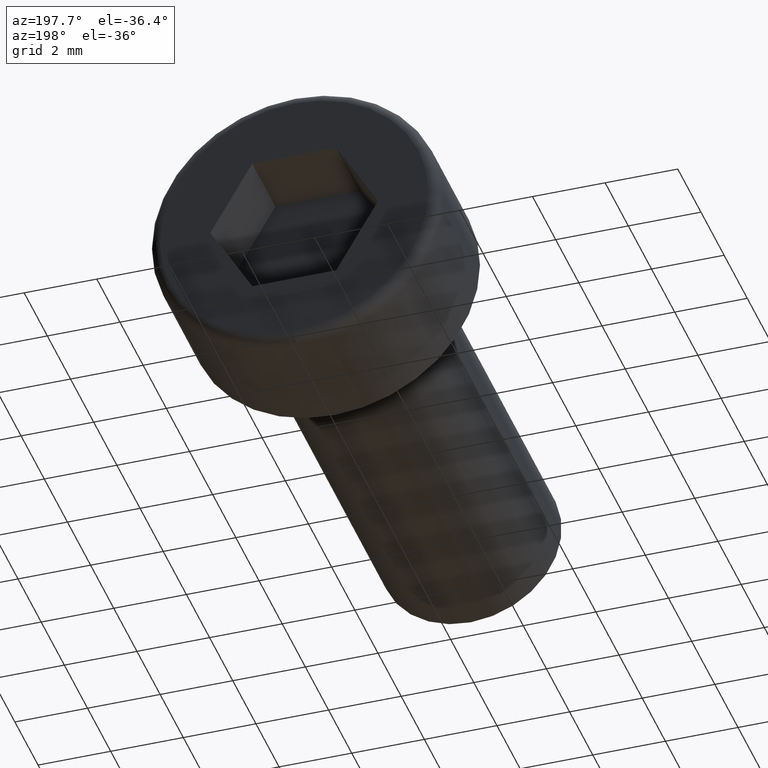
[diagram: clean part render]
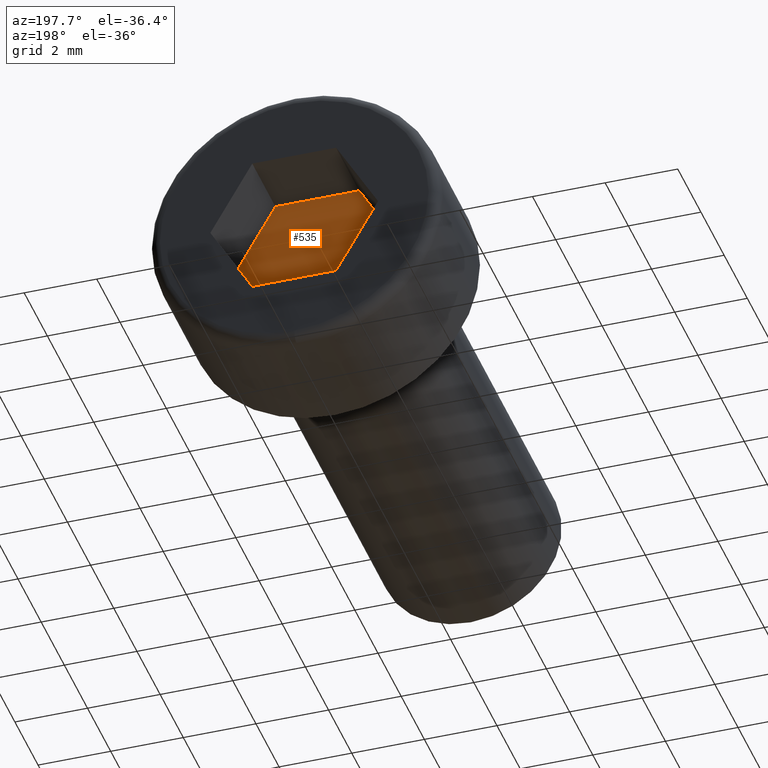
[diagram: same view with one face highlighted and labeled with its STEP entity id]
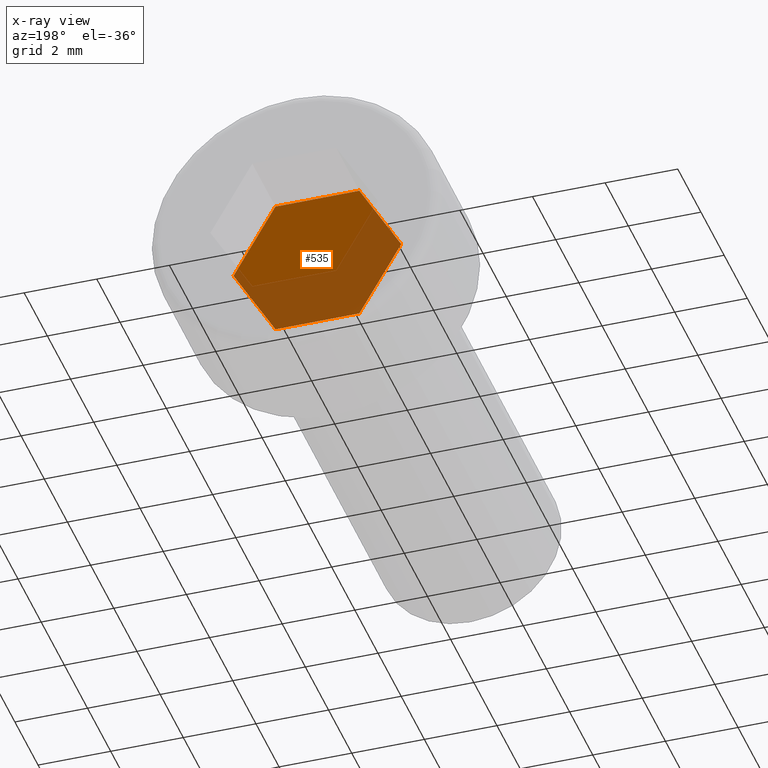
[diagram: x-ray of the same camera — body ghosted, the highlighted face saturated]
A machine part, auxiliary view. The second image highlights one B-rep face of the part: STEP entity #535.
The next image is the same camera in x-ray: the body ghosted, the highlighted face saturated — about 49% of this face is hidden behind the body in this view.
In plain terms, the highlighted planar face has unit normal (0, 1, -0).
Its self-contained STEP definition (entity closure, byte-faithful):
#60 = CARTESIAN_POINT ( 'NONE',  ( 2.309401076758502900, 1.500000000000000000, 4.821375040128190100E-016 ) ) ;
#79 = CARTESIAN_POINT ( 'NONE',  ( -1.154700538379254100, 1.500000000000000000, -1.999999999999998700 ) ) ;
#83 = DIRECTION ( 'NONE',  ( 0.0000000000000000000, 0.0000000000000000000, 1.000000000000000000 ) ) ;
#86 = DIRECTION ( 'NONE',  ( 0.0000000000000000000, 1.000000000000000000, -0.0000000000000000000 ) ) ;
#88 = CARTESIAN_POINT ( 'NONE',  ( -1.154700538379250400, 1.500000000000000000, 2.000000000000000900 ) ) ;
#90 = PLANE ( 'NONE',  #475 ) ;
#113 = CARTESIAN_POINT ( 'NONE',  ( -2.309401076758504300, 1.500000000000000000, -2.006582980830638000E-015 ) ) ;
#114 = DIRECTION ( 'NONE',  ( 0.5000000000000003300, 0.0000000000000000000, 0.8660254037844384900 ) ) ;
#116 = CARTESIAN_POINT ( 'NONE',  ( -2.309401076758504300, 1.500000000000000000, -1.722390880164080500E-015 ) ) ;
#121 = DIRECTION ( 'NONE',  ( 1.000000000000000000, 0.0000000000000000000, 0.0000000000000000000 ) ) ;
#124 = CARTESIAN_POINT ( 'NONE',  ( -1.154700538379250400, 1.500000000000000000, 2.000000000000000900 ) ) ;
#129 = DIRECTION ( 'NONE',  ( 0.5000000000000001100, 0.0000000000000000000, -0.8660254037844386000 ) ) ;
#130 = CARTESIAN_POINT ( 'NONE',  ( 1.154700538379250800, 1.500000000000000000, 2.000000000000000900 ) ) ;
#136 = DIRECTION ( 'NONE',  ( -0.5000000000000001100, 0.0000000000000000000, -0.8660254037844384900 ) ) ;
#137 = CARTESIAN_POINT ( 'NONE',  ( 2.309401076758502900, 1.500000000000000000, 4.821375040128190100E-016 ) ) ;
#142 = DIRECTION ( 'NONE',  ( -1.000000000000000000, 0.0000000000000000000, 1.877893248421447300E-016 ) ) ;
#143 = CARTESIAN_POINT ( 'NONE',  ( 1.154700538379251200, 1.500000000000000000, -1.999999999999999100 ) ) ;
#145 = DIRECTION ( 'NONE',  ( -0.4999999999999998900, 0.0000000000000000000, 0.8660254037844386000 ) ) ;
#146 = CARTESIAN_POINT ( 'NONE',  ( -1.154700538379254100, 1.500000000000000000, -1.999999999999998700 ) ) ;
#194 = CARTESIAN_POINT ( 'NONE',  ( 1.154700538379251200, 1.500000000000000000, -1.999999999999999100 ) ) ;
#205 = CARTESIAN_POINT ( 'NONE',  ( 1.154700538379250800, 1.500000000000000000, 2.000000000000000900 ) ) ;
#207 = CARTESIAN_POINT ( 'NONE',  ( -2.309401076758504300, 1.500000000000000000, -1.722390880164080500E-015 ) ) ;
#216 = LINE ( 'NONE', #146, #297 ) ;
#219 = VECTOR ( 'NONE', #142, 1000.000000000000000 ) ;
#220 = LINE ( 'NONE', #137, #224 ) ;
#224 = VECTOR ( 'NONE', #136, 1000.000000000000200 ) ;
#225 = LINE ( 'NONE', #130, #228 ) ;
#228 = VECTOR ( 'NONE', #129, 1000.000000000000100 ) ;
#229 = LINE ( 'NONE', #124, #232 ) ;
#232 = VECTOR ( 'NONE', #121, 1000.000000000000000 ) ;
#233 = LINE ( 'NONE', #116, #236 ) ;
#236 = VECTOR ( 'NONE', #114, 1000.000000000000100 ) ;
#238 = FACE_OUTER_BOUND ( 'NONE', #404, .T. ) ;
#297 = VECTOR ( 'NONE', #145, 1000.000000000000200 ) ;
#331 = VERTEX_POINT ( 'NONE', #207 ) ;
#332 = VERTEX_POINT ( 'NONE', #79 ) ;
#335 = VERTEX_POINT ( 'NONE', #88 ) ;
#336 = VERTEX_POINT ( 'NONE', #60 ) ;
#339 = VERTEX_POINT ( 'NONE', #205 ) ;
#343 = VERTEX_POINT ( 'NONE', #194 ) ;
#365 = ORIENTED_EDGE ( 'NONE', *, *, #437, .T. ) ;
#385 = ORIENTED_EDGE ( 'NONE', *, *, #447, .T. ) ;
#404 = EDGE_LOOP ( 'NONE', ( #365, #385, #410, #504, #528, #522 ) ) ;
#410 = ORIENTED_EDGE ( 'NONE', *, *, #445, .T. ) ;
#437 = EDGE_CURVE ( 'NONE', #332, #331, #216, .T. ) ;
#439 = EDGE_CURVE ( 'NONE', #343, #332, #547, .T. ) ;
#441 = EDGE_CURVE ( 'NONE', #336, #343, #220, .T. ) ;
#443 = EDGE_CURVE ( 'NONE', #339, #336, #225, .T. ) ;
#445 = EDGE_CURVE ( 'NONE', #335, #339, #229, .T. ) ;
#447 = EDGE_CURVE ( 'NONE', #331, #335, #233, .T. ) ;
#475 = AXIS2_PLACEMENT_3D ( 'NONE', #113, #86, #83 ) ;
#504 = ORIENTED_EDGE ( 'NONE', *, *, #443, .T. ) ;
#522 = ORIENTED_EDGE ( 'NONE', *, *, #439, .T. ) ;
#528 = ORIENTED_EDGE ( 'NONE', *, *, #441, .T. ) ;
#535 = ADVANCED_FACE ( 'NONE', ( #238 ), #90, .T. ) ;
#547 = LINE ( 'NONE', #143, #219 ) ;